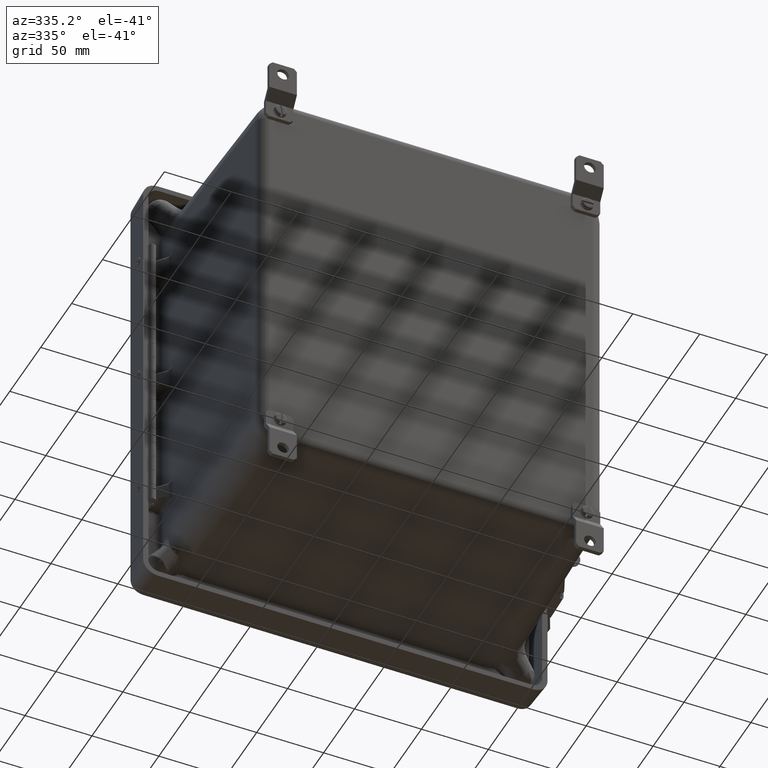
[diagram: clean part render]
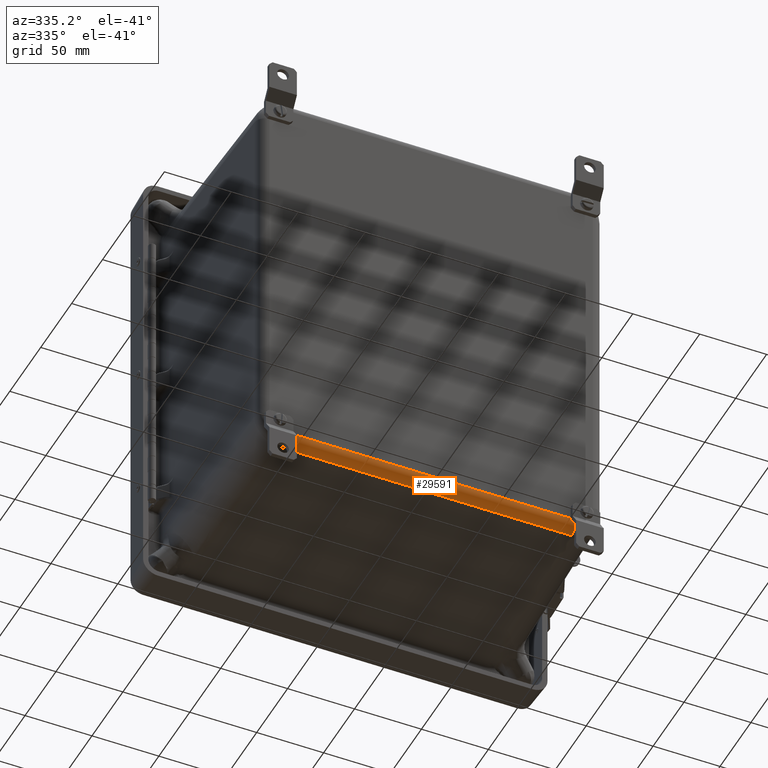
[diagram: same view with one face highlighted and labeled with its STEP entity id]
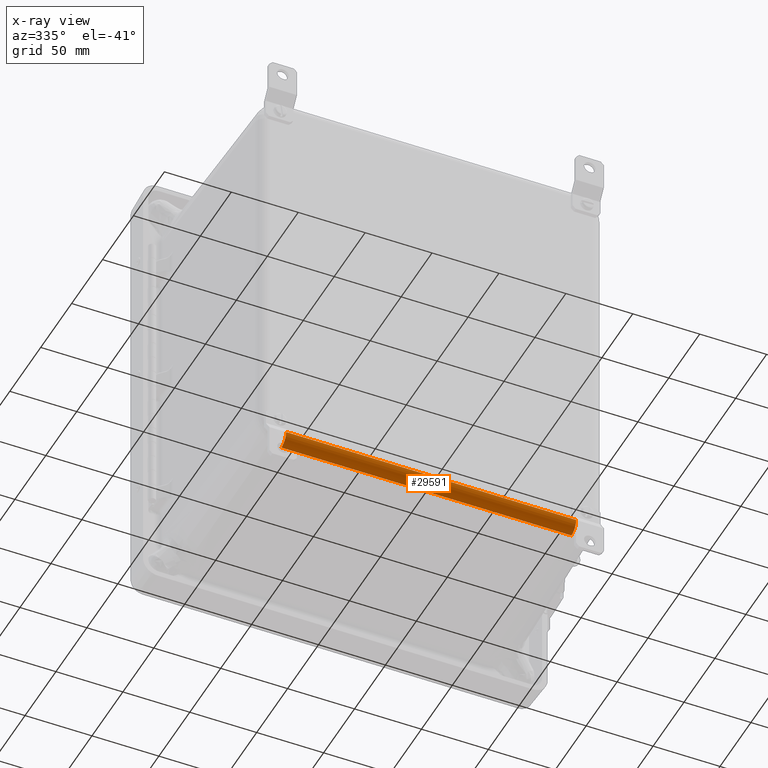
[diagram: x-ray of the same camera — body ghosted, the highlighted face saturated]
A machine part, auxiliary view. The second image highlights one B-rep face of the part: STEP entity #29591.
The next image is the same camera in x-ray: the body ghosted, the highlighted face saturated — about 0% of this face is hidden behind the body in this view.
In plain terms, the highlighted cylindrical surface (edge-blend (fillet) strip) has radius 7.9486 mm, axis along (-1, 0, -0).
Its self-contained STEP definition (entity closure, byte-faithful):
#1071 = DIRECTION ( 'NONE',  ( -1.000000000000000000, 9.043632955459621900E-035, -1.282256744268605300E-016 ) ) ;
#3527 = CARTESIAN_POINT ( 'NONE',  ( -4.266925031075250500, -5.815655632989034100, -5.691336252580356400 ) ) ;
#3537 = VERTEX_POINT ( 'NONE', #43902 ) ;
#4209 = CARTESIAN_POINT ( 'NONE',  ( 4.267005768924749800, -5.815655632989034100, -5.691336252580356400 ) ) ;
#4292 = CARTESIAN_POINT ( 'NONE',  ( 4.267005768924749800, -6.128593132989035300, -5.691336252580356400 ) ) ;
#4916 = EDGE_CURVE ( 'NONE', #3537, #52297, #39635, .T. ) ;
#6485 = CARTESIAN_POINT ( 'NONE',  ( 4.267005768924752500, -6.128593132989035300, -5.691336252580356400 ) ) ;
#6916 = DIRECTION ( 'NONE',  ( 0.0000000000000000000, 0.0000000000000000000, 1.000000000000000000 ) ) ;
#7714 = DIRECTION ( 'NONE',  ( 0.0000000000000000000, 0.0000000000000000000, -1.000000000000000000 ) ) ;
#8391 = DIRECTION ( 'NONE',  ( 0.0000000000000000000, 0.0000000000000000000, -1.000000000000000000 ) ) ;
#9302 = ORIENTED_EDGE ( 'NONE', *, *, #44493, .F. ) ;
#10031 = FACE_OUTER_BOUND ( 'NONE', #42548, .T. ) ;
#11100 = DIRECTION ( 'NONE',  ( -1.000000000000000000, 0.0000000000000000000, -1.282256744268605300E-016 ) ) ;
#11166 = EDGE_CURVE ( 'NONE', #14169, #29642, #40181, .T. ) ;
#12499 = ORIENTED_EDGE ( 'NONE', *, *, #11166, .F. ) ;
#14169 = VERTEX_POINT ( 'NONE', #4292 ) ;
#15933 = EDGE_CURVE ( 'NONE', #29642, #52297, #24864, .T. ) ;
#20170 = CARTESIAN_POINT ( 'NONE',  ( -4.266925031075250500, -5.826576994238370900, -6.004083119510645400 ) ) ;
#20781 = AXIS2_PLACEMENT_3D ( 'NONE', #44205, #11100, #6916 ) ;
#21741 = CARTESIAN_POINT ( 'NONE',  ( 4.267005768924749800, -5.826576994238372700, -6.004083119510643700 ) ) ;
#23149 = DIRECTION ( 'NONE',  ( 1.000000000000000000, -0.0000000000000000000, 1.282256744268605300E-016 ) ) ;
#24864 = LINE ( 'NONE', #21741, #47022 ) ;
#25807 = AXIS2_PLACEMENT_3D ( 'NONE', #4209, #33306, #8391 ) ;
#29387 = LINE ( 'NONE', #6485, #30695 ) ;
#29591 = ADVANCED_FACE ( 'NONE', ( #10031 ), #41909, .T. ) ;
#29642 = VERTEX_POINT ( 'NONE', #32363 ) ;
#30695 = VECTOR ( 'NONE', #23149, 39.37007874015748100 ) ;
#32363 = CARTESIAN_POINT ( 'NONE',  ( 4.267005768924749800, -5.826576994238370900, -6.004083119510645400 ) ) ;
#32636 = DIRECTION ( 'NONE',  ( 1.000000000000000000, 0.0000000000000000000, 0.0000000000000000000 ) ) ;
#33306 = DIRECTION ( 'NONE',  ( 1.000000000000000000, 0.0000000000000000000, 0.0000000000000000000 ) ) ;
#36922 = ORIENTED_EDGE ( 'NONE', *, *, #4916, .T. ) ;
#39635 = CIRCLE ( 'NONE', #45399, 0.3129375000000003100 ) ;
#40181 = CIRCLE ( 'NONE', #25807, 0.3129375000000003100 ) ;
#41909 = CYLINDRICAL_SURFACE ( 'NONE', #20781, 0.3129375000000003100 ) ;
#42548 = EDGE_LOOP ( 'NONE', ( #36922, #43874, #12499, #9302 ) ) ;
#43874 = ORIENTED_EDGE ( 'NONE', *, *, #15933, .F. ) ;
#43902 = CARTESIAN_POINT ( 'NONE',  ( -4.266925031075250500, -6.128593132989035300, -5.691336252580356400 ) ) ;
#44205 = CARTESIAN_POINT ( 'NONE',  ( 4.267005768924749800, -5.815655632989034100, -5.691336252580356400 ) ) ;
#44493 = EDGE_CURVE ( 'NONE', #3537, #14169, #29387, .T. ) ;
#45399 = AXIS2_PLACEMENT_3D ( 'NONE', #3527, #32636, #7714 ) ;
#47022 = VECTOR ( 'NONE', #1071, 39.37007874015748100 ) ;
#52297 = VERTEX_POINT ( 'NONE', #20170 ) ;